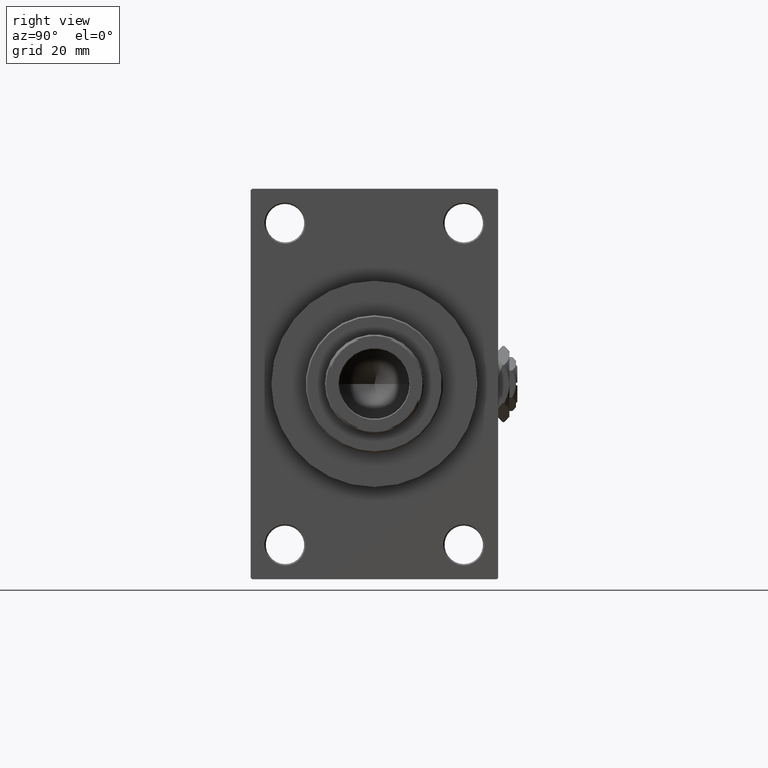
[diagram: clean part render]
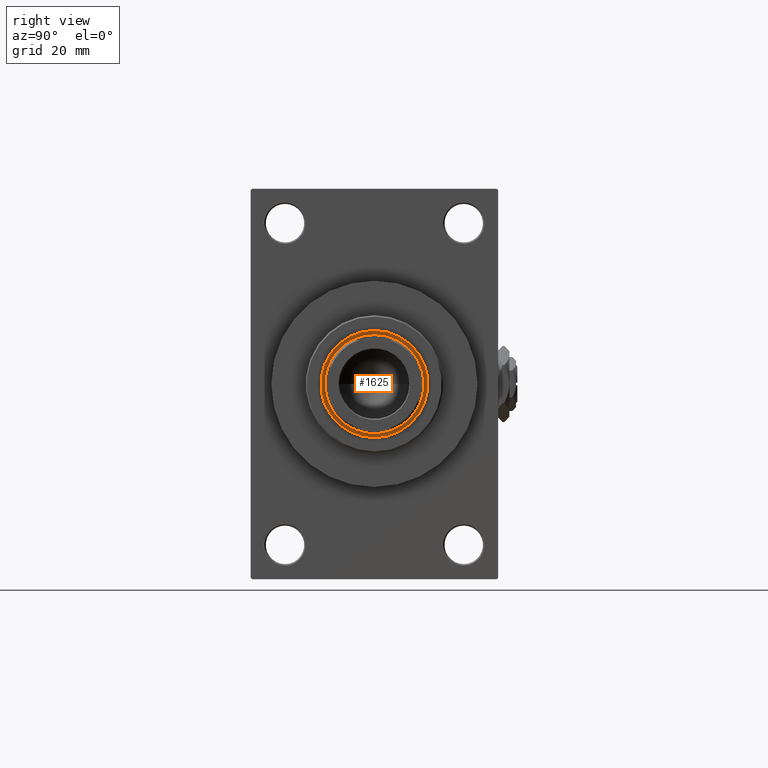
[diagram: same view with one face highlighted and labeled with its STEP entity id]
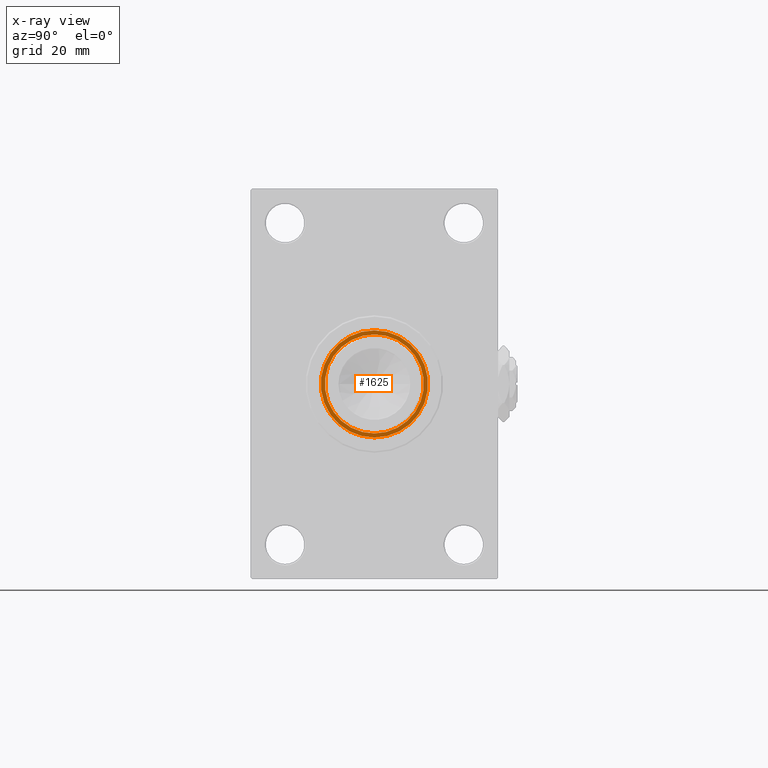
[diagram: x-ray of the same camera — body ghosted, the highlighted face saturated]
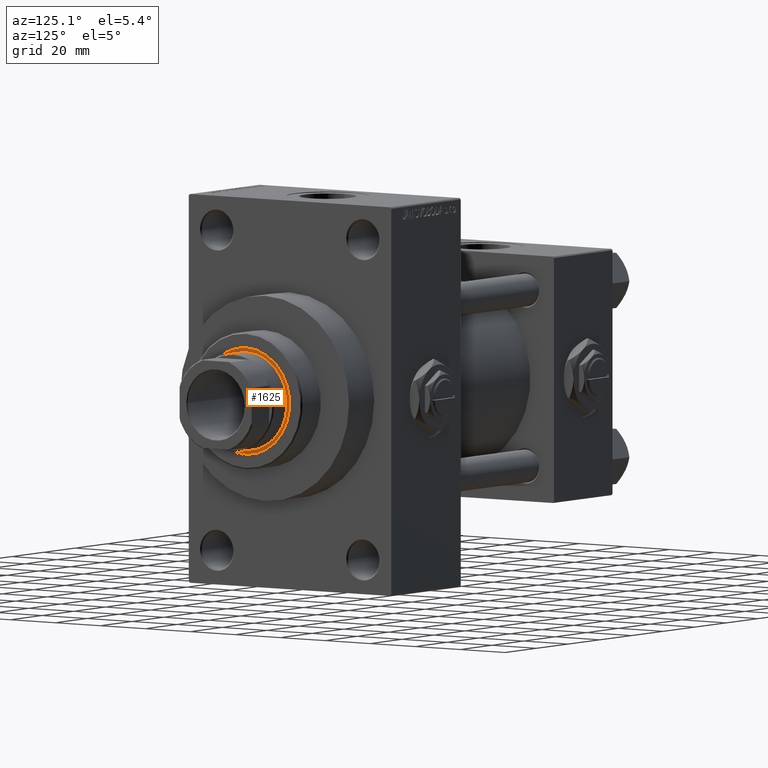
[diagram: same view with one face highlighted and labeled with its STEP entity id]
A machine part, right view. The second image highlights one B-rep face of the part: STEP entity #1625.
The next image is the same camera in x-ray: the body ghosted, the highlighted face saturated — about 0% of this face is hidden behind the body in this view.
A second angle (auxiliary view) of the same face is appended — the face is thin or edge-on in the first view.
In plain terms, the highlighted planar face has unit normal (1, -0, -0).
Its self-contained STEP definition (entity closure, byte-faithful):
#239 = DIRECTION ( 'NONE',  ( 1.000000000000000000, 0.000000000000000000, 0.000000000000000000 ) ) ;
#1625 = ADVANCED_FACE ( 'NONE', ( #15296, #19538 ), #11565, .T. ) ;
#2811 = AXIS2_PLACEMENT_3D ( 'NONE', #33776, #15572, #11590 ) ;
#4139 = ORIENTED_EDGE ( 'NONE', *, *, #9323, .T. ) ;
#5907 = EDGE_LOOP ( 'NONE', ( #4139, #9956 ) ) ;
#7127 = CARTESIAN_POINT ( 'NONE',  ( -18.00000000000000000, 2.204364238465235033E-15, 54.76000000000000512 ) ) ;
#7329 = CIRCLE ( 'NONE', #35201, 18.00000000000000000 ) ;
#7340 = CIRCLE ( 'NONE', #30435, 19.50000000000000000 ) ;
#9323 = EDGE_CURVE ( 'NONE', #18260, #28445, #7340, .T. ) ;
#9956 = ORIENTED_EDGE ( 'NONE', *, *, #25615, .T. ) ;
#11565 = PLANE ( 'NONE',  #18299 ) ;
#11590 = DIRECTION ( 'NONE',  ( 1.000000000000000000, 0.000000000000000000, 0.000000000000000000 ) ) ;
#11773 = CARTESIAN_POINT ( 'NONE',  ( 0.000000000000000000, 0.000000000000000000, 54.76000000000000512 ) ) ;
#12349 = CIRCLE ( 'NONE', #2811, 18.00000000000000000 ) ;
#13806 = CARTESIAN_POINT ( 'NONE',  ( 19.50000000000000000, 0.000000000000000000, 54.76000000000000512 ) ) ;
#15020 = DIRECTION ( 'NONE',  ( 1.000000000000000000, 0.000000000000000000, 0.000000000000000000 ) ) ;
#15296 = FACE_OUTER_BOUND ( 'NONE', #5907, .T. ) ;
#15572 = DIRECTION ( 'NONE',  ( -0.000000000000000000, -0.000000000000000000, -1.000000000000000000 ) ) ;
#16944 = EDGE_CURVE ( 'NONE', #34790, #36259, #12349, .T. ) ;
#18260 = VERTEX_POINT ( 'NONE', #13806 ) ;
#18299 = AXIS2_PLACEMENT_3D ( 'NONE', #45958, #26766, #34747 ) ;
#19538 = FACE_BOUND ( 'NONE', #25599, .T. ) ;
#21381 = ORIENTED_EDGE ( 'NONE', *, *, #16944, .T. ) ;
#24498 = AXIS2_PLACEMENT_3D ( 'NONE', #32020, #47950, #28523 ) ;
#25599 = EDGE_LOOP ( 'NONE', ( #39773, #21381 ) ) ;
#25615 = EDGE_CURVE ( 'NONE', #28445, #18260, #42781, .T. ) ;
#26766 = DIRECTION ( 'NONE',  ( 0.000000000000000000, 0.000000000000000000, 1.000000000000000000 ) ) ;
#28445 = VERTEX_POINT ( 'NONE', #44462 ) ;
#28523 = DIRECTION ( 'NONE',  ( 1.000000000000000000, 0.000000000000000000, 0.000000000000000000 ) ) ;
#30435 = AXIS2_PLACEMENT_3D ( 'NONE', #11773, #33970, #15020 ) ;
#30667 = CARTESIAN_POINT ( 'NONE',  ( 0.000000000000000000, 0.000000000000000000, 54.76000000000000512 ) ) ;
#32020 = CARTESIAN_POINT ( 'NONE',  ( 0.000000000000000000, 0.000000000000000000, 54.76000000000000512 ) ) ;
#33776 = CARTESIAN_POINT ( 'NONE',  ( 0.000000000000000000, 0.000000000000000000, 54.76000000000000512 ) ) ;
#33970 = DIRECTION ( 'NONE',  ( 0.000000000000000000, 0.000000000000000000, 1.000000000000000000 ) ) ;
#34747 = DIRECTION ( 'NONE',  ( 1.000000000000000000, 0.000000000000000000, -0.000000000000000000 ) ) ;
#34790 = VERTEX_POINT ( 'NONE', #7127 ) ;
#35201 = AXIS2_PLACEMENT_3D ( 'NONE', #30667, #42113, #239 ) ;
#36259 = VERTEX_POINT ( 'NONE', #48105 ) ;
#38669 = EDGE_CURVE ( 'NONE', #36259, #34790, #7329, .T. ) ;
#39773 = ORIENTED_EDGE ( 'NONE', *, *, #38669, .T. ) ;
#42113 = DIRECTION ( 'NONE',  ( -0.000000000000000000, -0.000000000000000000, -1.000000000000000000 ) ) ;
#42781 = CIRCLE ( 'NONE', #24498, 19.50000000000000000 ) ;
#44462 = CARTESIAN_POINT ( 'NONE',  ( -19.50000000000000000, 2.388061258337338939E-15, 54.76000000000000512 ) ) ;
#45958 = CARTESIAN_POINT ( 'NONE',  ( 0.000000000000000000, 0.000000000000000000, 54.76000000000000512 ) ) ;
#47950 = DIRECTION ( 'NONE',  ( 0.000000000000000000, 0.000000000000000000, 1.000000000000000000 ) ) ;
#48105 = CARTESIAN_POINT ( 'NONE',  ( 18.00000000000000000, 0.000000000000000000, 54.76000000000000512 ) ) ;